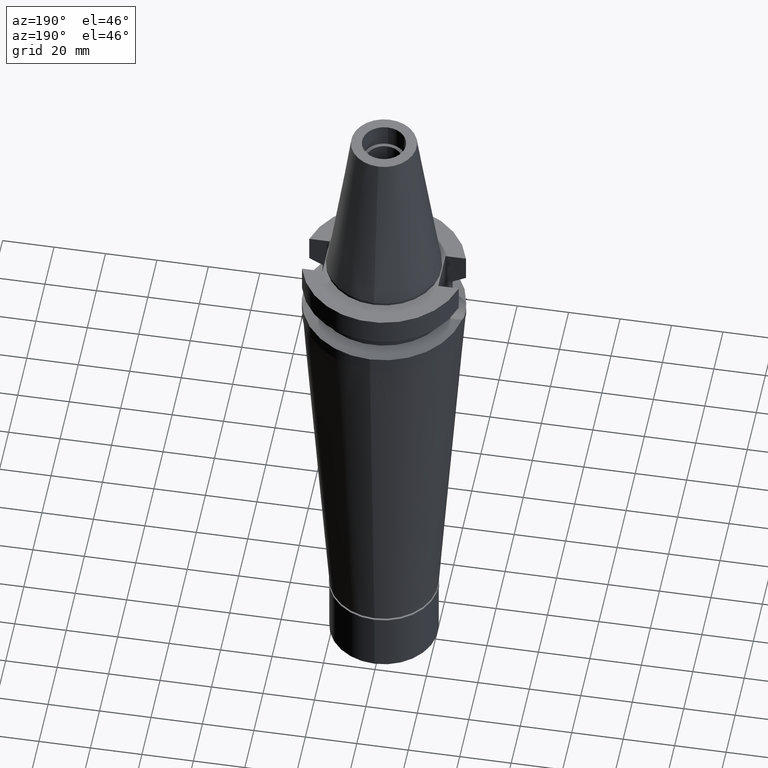
[diagram: clean part render]
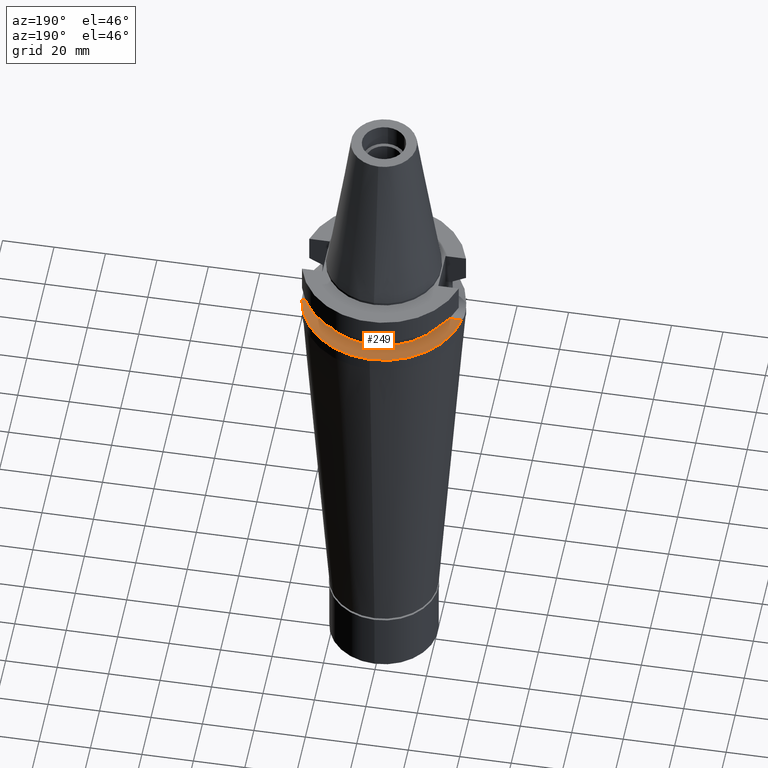
[diagram: same view with one face highlighted and labeled with its STEP entity id]
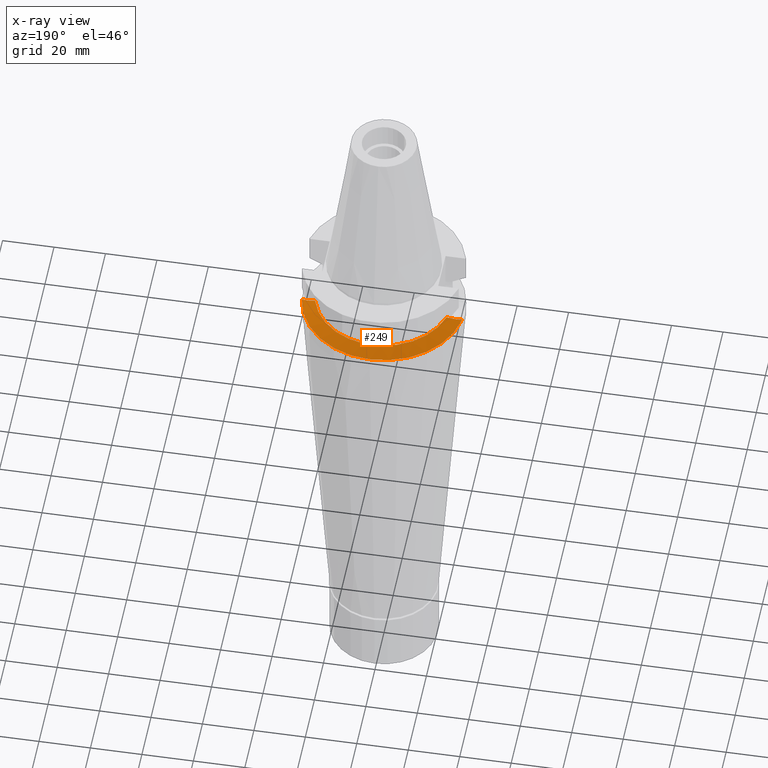
[diagram: x-ray of the same camera — body ghosted, the highlighted face saturated]
A machine part, auxiliary view. The second image highlights one B-rep face of the part: STEP entity #249.
The next image is the same camera in x-ray: the body ghosted, the highlighted face saturated — about 0% of this face is hidden behind the body in this view.
In plain terms, the highlighted conical surface has half-angle 60 deg.
Its self-contained STEP definition (entity closure, byte-faithful):
#6 = AXIS2_PLACEMENT_3D ( 'NONE', #2626, #454, #226 ) ;
#112 = CIRCLE ( 'NONE', #2794, 26.49999999999998224 ) ;
#135 = FACE_OUTER_BOUND ( 'NONE', #2382, .T. ) ;
#171 = DIRECTION ( 'NONE',  ( -0.9898094849552905306, 0.1423979757318985240, 0.0000000000000000000 ) ) ;
#226 = DIRECTION ( 'NONE',  ( 0.0000000000000000000, 1.000000000000000000, 0.0000000000000000000 ) ) ;
#236 = CARTESIAN_POINT ( 'NONE',  ( 28.70393721035967260, 5.950329234906648779, -20.37189133231077420 ) ) ;
#249 = ADVANCED_FACE ( 'NONE', ( #135 ), #1776, .T. ) ;
#398 = EDGE_CURVE ( 'NONE', #2280, #1113, #112, .T. ) ;
#437 = EDGE_CURVE ( 'NONE', #1246, #1144, #2649, .T. ) ;
#449 = CARTESIAN_POINT ( 'NONE',  ( 25.53175183775000079, 7.097862220092999941, -18.74774300138999905 ) ) ;
#454 = DIRECTION ( 'NONE',  ( 0.0000000000000000000, 0.0000000000000000000, -1.000000000000000000 ) ) ;
#458 = CARTESIAN_POINT ( 'NONE',  ( 28.60928428372263710, 5.993965959905562357, -20.32353715657794524 ) ) ;
#468 = DIRECTION ( 'NONE',  ( 0.0000000000000000000, 0.0000000000000000000, 1.000000000000000000 ) ) ;
#496 = CARTESIAN_POINT ( 'NONE',  ( 30.82470290580319272, 4.754329403696269551, -21.45412445951186697 ) ) ;
#600 = ORIENTED_EDGE ( 'NONE', *, *, #724, .F. ) ;
#655 = DIRECTION ( 'NONE',  ( 0.0000000000000000000, 0.0000000000000000000, -1.000000000000000000 ) ) ;
#705 = CARTESIAN_POINT ( 'NONE',  ( 26.70342072955572377, 6.775790519092602437, -19.34968488051135438 ) ) ;
#718 = CARTESIAN_POINT ( 'NONE',  ( 29.02916543105188296, 5.795632740863709387, -20.53803734811042858 ) ) ;
#724 = EDGE_CURVE ( 'NONE', #1144, #2280, #1635, .T. ) ;
#736 = CARTESIAN_POINT ( 'NONE',  ( 29.20872392141627927, 5.705276752078876079, -20.62975510566671389 ) ) ;
#771 = CARTESIAN_POINT ( 'NONE',  ( 29.56065666537481462, 5.522509009866569230, -20.80948784012543484 ) ) ;
#784 = CARTESIAN_POINT ( 'NONE',  ( 31.17899877608999759, 4.485536235554000051, -21.63449434733000132 ) ) ;
#816 = ORIENTED_EDGE ( 'NONE', *, *, #1620, .F. ) ;
#830 = AXIS2_PLACEMENT_3D ( 'NONE', #1846, #655, #1606 ) ;
#961 = CARTESIAN_POINT ( 'NONE',  ( 28.60022499078767666, 5.998111014875530778, -20.31890919265232398 ) ) ;
#1113 = VERTEX_POINT ( 'NONE', #2232 ) ;
#1115 = EDGE_CURVE ( 'NONE', #1113, #2877, #1189, .T. ) ;
#1144 = VERTEX_POINT ( 'NONE', #784 ) ;
#1189 = B_SPLINE_CURVE_WITH_KNOTS ( 'NONE', 3,
 ( #1977, #1995, #2474, #2690, #2677, #2957, #2725, #2974 ),
 .UNSPECIFIED., .F., .F.,
 ( 4, 2, 2, 4 ),
 ( 0.0000000000000000000, 0.2500000000000003331, 0.5000000000000006661, 1.000000000000000000 ),
 .UNSPECIFIED. ) ;
#1190 = CARTESIAN_POINT ( 'NONE',  ( 29.78569951232010382, 5.397923811449612863, -20.92437036838789410 ) ) ;
#1246 = VERTEX_POINT ( 'NONE', #2203 ) ;
#1606 = DIRECTION ( 'NONE',  ( 0.0000000000000000000, -1.000000000000000000, 0.0000000000000000000 ) ) ;
#1620 = EDGE_CURVE ( 'NONE', #2877, #1246, #3060, .T. ) ;
#1626 = CARTESIAN_POINT ( 'NONE',  ( -31.17899877608999759, 4.485536235554000051, -21.63449434733000132 ) ) ;
#1635 = B_SPLINE_CURVE_WITH_KNOTS ( 'NONE', 3,
 ( #1948, #496, #2879, #1190, #771, #736, #718, #1670, #236, #2138, #2619, #458, #961, #2630, #705, #449 ),
 .UNSPECIFIED., .F., .F.,
 ( 4, 2, 2, 1, 1, 1, 1, 2, 2, 4 ),
 ( 0.0000000000000000000, 0.2499999999999883427, 0.3749999999999830691, 0.4374999999999800715, 0.4687499999999791833, 0.4843749999999786837, 0.4921874999999787392, 0.4960937499999787947, 0.4999999999999789058, 1.000000000000000000 ),
 .UNSPECIFIED. ) ;
#1670 = CARTESIAN_POINT ( 'NONE',  ( 28.81339431845274390, 5.899100811968817304, -20.42780895046561085 ) ) ;
#1776 = CONICAL_SURFACE ( 'NONE', #830, 29.00000000000000000, 1.047197551196400456 ) ;
#1846 = CARTESIAN_POINT ( 'NONE',  ( 0.0000000000000000000, 0.0000000000000000000, -20.19111867435999841 ) ) ;
#1879 = CARTESIAN_POINT ( 'NONE',  ( 0.0000000000000000000, 0.0000000000000000000, -18.74774300138999905 ) ) ;
#1948 = CARTESIAN_POINT ( 'NONE',  ( 31.17899877608999759, 4.485536235554000051, -21.63449434733000132 ) ) ;
#1962 = ORIENTED_EDGE ( 'NONE', *, *, #1115, .F. ) ;
#1977 = CARTESIAN_POINT ( 'NONE',  ( -25.53175183775000079, 7.097862220092999941, -18.74774300138999905 ) ) ;
#1989 = CARTESIAN_POINT ( 'NONE',  ( 25.53175183775000079, 7.097862220092999941, -18.74774300138999905 ) ) ;
#1995 = CARTESIAN_POINT ( 'NONE',  ( -26.16250366851512155, 6.924479350185312576, -19.07179013187346328 ) ) ;
#2063 = DIRECTION ( 'NONE',  ( 0.0000000000000000000, 0.0000000000000000000, -1.000000000000000000 ) ) ;
#2097 = AXIS2_PLACEMENT_3D ( 'NONE', #2834, #2063, #171 ) ;
#2138 = CARTESIAN_POINT ( 'NONE',  ( 28.64881576836476995, 5.975814687730919950, -20.34373202318088403 ) ) ;
#2203 = CARTESIAN_POINT ( 'NONE',  ( 0.0000000000000000000, 31.50000000000000000, -21.63449434733000132 ) ) ;
#2232 = CARTESIAN_POINT ( 'NONE',  ( -25.53175183775000079, 7.097862220092999941, -18.74774300138999905 ) ) ;
#2280 = VERTEX_POINT ( 'NONE', #1989 ) ;
#2382 = EDGE_LOOP ( 'NONE', ( #1962, #2436, #600, #3134, #816 ) ) ;
#2436 = ORIENTED_EDGE ( 'NONE', *, *, #398, .F. ) ;
#2474 = CARTESIAN_POINT ( 'NONE',  ( -26.75085934027436352, 6.734402302378335925, -19.37367911811265486 ) ) ;
#2619 = CARTESIAN_POINT ( 'NONE',  ( 28.62510810294944363, 5.986709180483238413, -20.33162082368761148 ) ) ;
#2626 = CARTESIAN_POINT ( 'NONE',  ( 0.0000000000000000000, 0.0000000000000000000, -21.63449434733000132 ) ) ;
#2630 = CARTESIAN_POINT ( 'NONE',  ( 27.72398091732936365, 6.398318905891569486, -19.87127892909323634 ) ) ;
#2649 = CIRCLE ( 'NONE', #6, 31.50000000000000000 ) ;
#2677 = CARTESIAN_POINT ( 'NONE',  ( -28.34530798609369739, 6.120118738752597487, -20.18930654637496502 ) ) ;
#2690 = CARTESIAN_POINT ( 'NONE',  ( -27.84277836578101883, 6.331973264768006260, -19.93269263396486934 ) ) ;
#2725 = CARTESIAN_POINT ( 'NONE',  ( -30.52240739122927238, 4.983671532379338132, -21.30022763873621727 ) ) ;
#2794 = AXIS2_PLACEMENT_3D ( 'NONE', #1879, #468, #2839 ) ;
#2834 = CARTESIAN_POINT ( 'NONE',  ( 0.0000000000000000000, 0.0000000000000000000, -21.63449434733000132 ) ) ;
#2839 = DIRECTION ( 'NONE',  ( 0.9634623335000935818, 0.2678438573619981722, 0.0000000000000000000 ) ) ;
#2877 = VERTEX_POINT ( 'NONE', #1626 ) ;
#2879 = CARTESIAN_POINT ( 'NONE',  ( 30.43209110607487133, 5.017272396581501148, -21.25414219303827323 ) ) ;
#2957 = CARTESIAN_POINT ( 'NONE',  ( -29.73191077062260845, 5.463068522174930663, -20.89744719819298879 ) ) ;
#2974 = CARTESIAN_POINT ( 'NONE',  ( -31.17899877608999759, 4.485536235554000051, -21.63449434733000132 ) ) ;
#3060 = CIRCLE ( 'NONE', #2097, 31.50000000000001421 ) ;
#3134 = ORIENTED_EDGE ( 'NONE', *, *, #437, .F. ) ;